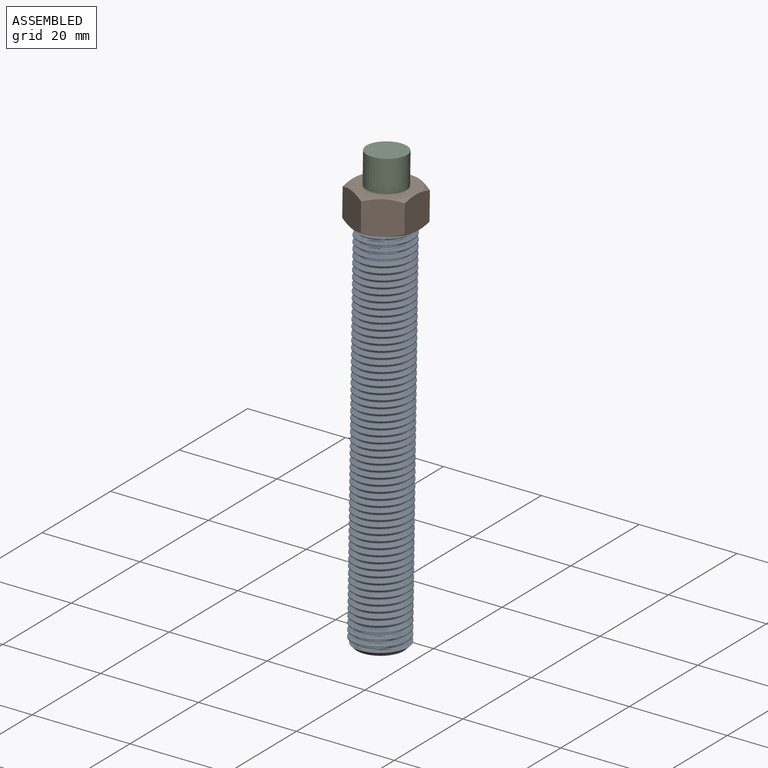
[diagram: assembled view]
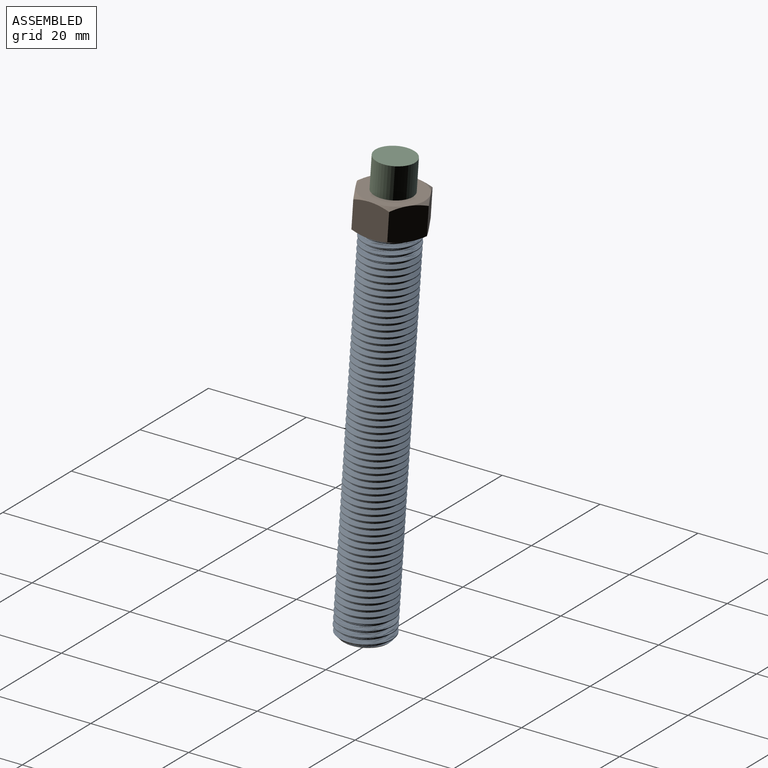
[diagram: assembled view, second angle]
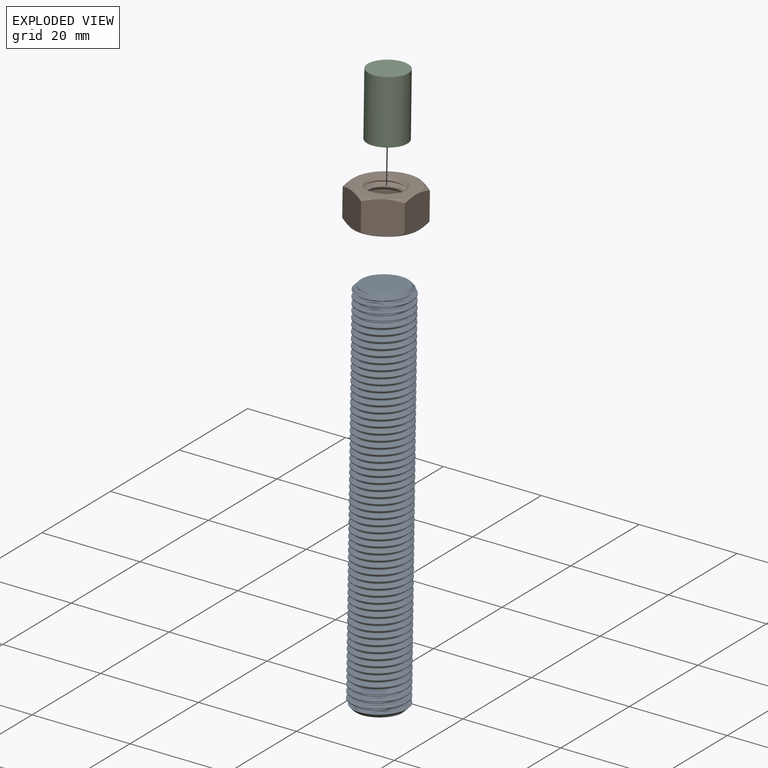
[diagram: exploded view]
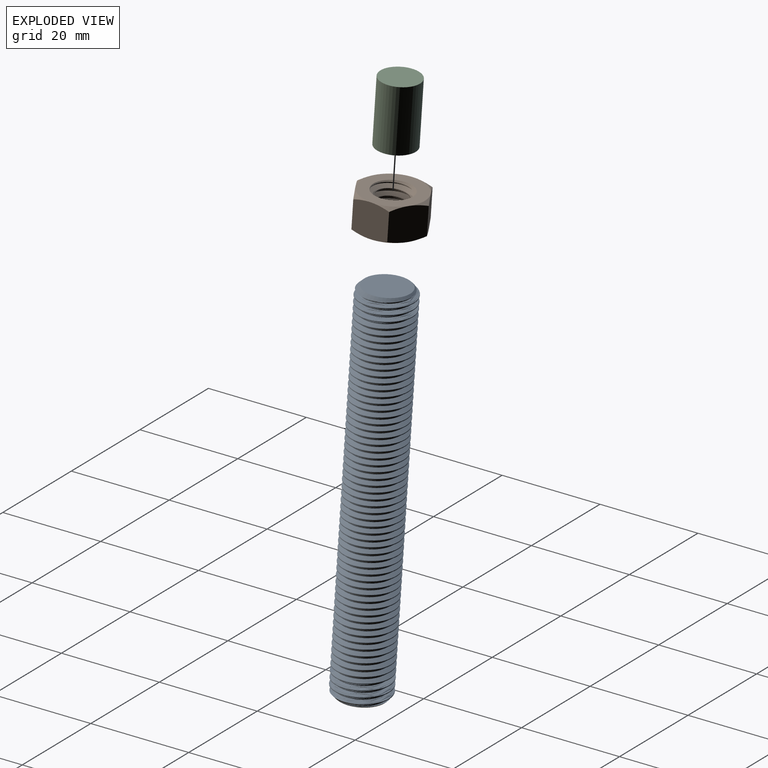
[diagram: exploded view, second angle]
ASSEMBLY  parts=3 mates=4
PART A: 9 faces, bbox 77.1x11.2x13 mm
  f0: cylinder r=5.55mm len=74.3mm, axis (1,0,0), area 323.9mm2, adj f1,f3,f6,f8
  f1: cone r=4.6mm half-angle=45deg, axis (-1,0,0), area 24mm2, adj f0,f5,f6,f7,f8
  f2: cone r=5.55mm half-angle=45deg, axis (1,0,0), area 22.7mm2, adj f3,f4,f6,f7,f8
  f3: cone r=5.55mm half-angle=45deg, axis (1,0,0), area 1.1mm2, adj f0,f2,f6
  f4: plane 9.2x9.2mm, normal (-1,0,0), area 66.4mm2, adj f2
  f5: plane 9.2x9.2mm, normal (1,0,0), area 66.4mm2, adj f1
  f6: bspline ~76.72x12.98mm, area 1250.6mm2, adj f0,f1,f2,f3,f7
  f7: cylinder r=4.73mm len=75.94mm, axis (-1,0,0), area 1760mm2, adj f1,f2,f6,f8
  f8: bspline ~76.42x11.09mm, area 1819mm2, adj f0,f1,f2,f7
PART B: 26 faces, bbox 15.3x15.3x8.5 mm
  f0: cone r=3.62mm half-angle=45deg, axis (0,0,-1), area 14.8mm2, adj f10,f11,f12,f13
  f1: cone r=3.62mm half-angle=45deg, axis (0,0,1), area 14.8mm2, adj f3,f11,f12,f13
  f2: cylinder r=3.97mm len=7.94mm, axis (0,0,-1), area 21mm2, adj f3,f10,f11,f13
  f3: plane 12.7x12.7mm, normal (0,0,1), area 77.2mm2, adj f1,f2,f14,f15,f16,f17,f18,f19
  f4: plane 7.35x6.95mm, normal (-0.5,0.87,0), area 46.6mm2, adj f5,f9,f14,f19,f21,f22
  f5: plane 7.94x7.35mm, normal (-1,0,0), area 46.6mm2, adj f4,f6,f18,f19,f22,f23
  f6: plane 7.35x6.95mm, normal (-0.5,-0.87,0), area 46.6mm2, adj f5,f7,f17,f18,f23,f24
  f7: plane 7.35x6.95mm, normal (0.5,-0.87,0), area 46.6mm2, adj f6,f8,f16,f17,f24,f25
  f8: plane 7.94x7.35mm, normal (1,0,0), area 46.6mm2, adj f7,f9,f15,f16,f20,f25
  f9: plane 7.35x6.95mm, normal (0.5,0.87,0), area 46.6mm2, adj f4,f8,f14,f15,f20,f21
  f10: plane 12.7x12.7mm, normal (0,0,-1), area 77.2mm2, adj f0,f2,f20,f21,f22,f23,f24,f25
  f11: bspline ~7.94x7.94mm, area 97.3mm2, adj f0,f1,f2,f12
  f12: cylinder r=3.05mm len=6.1mm, axis (0,0,-1), area 11.8mm2, adj f0,f1,f11,f13
  f13: bspline ~7.93x7.93mm, area 97.2mm2, adj f0,f1,f2,f12
  f14: cone r=6.35mm half-angle=60deg, axis (0,0,-1), area 4mm2, adj f3,f4,f9
  f15: cone r=6.35mm half-angle=60deg, axis (0,0,-1), area 4mm2, adj f3,f8,f9
  f16: cone r=6.35mm half-angle=60deg, axis (0,0,-1), area 4mm2, adj f3,f7,f8
  f17: cone r=6.35mm half-angle=60deg, axis (0,0,-1), area 4mm2, adj f3,f6,f7
  f18: cone r=6.35mm half-angle=60deg, axis (0,0,-1), area 4mm2, adj f3,f5,f6
  f19: cone r=6.35mm half-angle=60deg, axis (0,0,-1), area 4mm2, adj f3,f4,f5
  f20: cone r=6.35mm half-angle=60deg, axis (0,0,1), area 4mm2, adj f8,f9,f10
  f21: cone r=6.35mm half-angle=60deg, axis (0,0,1), area 4mm2, adj f4,f9,f10
  f22: cone r=6.35mm half-angle=60deg, axis (0,0,1), area 4mm2, adj f4,f5,f10
  f23: cone r=6.35mm half-angle=60deg, axis (0,0,1), area 4mm2, adj f5,f6,f10
  f24: cone r=6.35mm half-angle=60deg, axis (0,0,1), area 4mm2, adj f6,f7,f10
  f25: cone r=6.35mm half-angle=60deg, axis (0,0,1), area 4mm2, adj f7,f8,f10
PART C: 3 faces, bbox 7.9x7.9x12.7 mm
  f0: cylinder r=3.97mm len=12.7mm, axis (0,0,-1), area 316.7mm2, adj f1,f2
  f1: plane 7.94x7.94mm, normal (0,0,1), area 49.5mm2, adj f0
  f2: plane 7.94x7.94mm, normal (0,0,-1), area 49.5mm2, adj f0
PLACE A rot(axis=(-0.03,-1,0.03),91.3deg) t=(26.85,-24.53,-54.72)mm
PLACE B rot(axis=(-0.92,-0.38,0),3.3deg) t=(25.93,-22.31,-13.32)mm
PLACE C rot(axis=(-0.92,-0.38,0),3.3deg) t=(26,-22.47,-16.29)mm
MATE cylindrical C.f0 <-> A.f0  axis (0.02,-0.05,-1) through (26,-22.47,-16.29)mm
MATE planar C.f0 <-> B.f2  axis (0.02,-0.05,-1) through (26,-22.47,-16.29)mm
MATE planar B.f2 <-> A.f0  axis (0.02,-0.05,-1) through (26.01,-22.49,-16.69)mm
MATE cylindrical B.f2 <-> A.f0  axis (-0.02,0.05,1) through (25.86,-22.13,-9.95)mm
